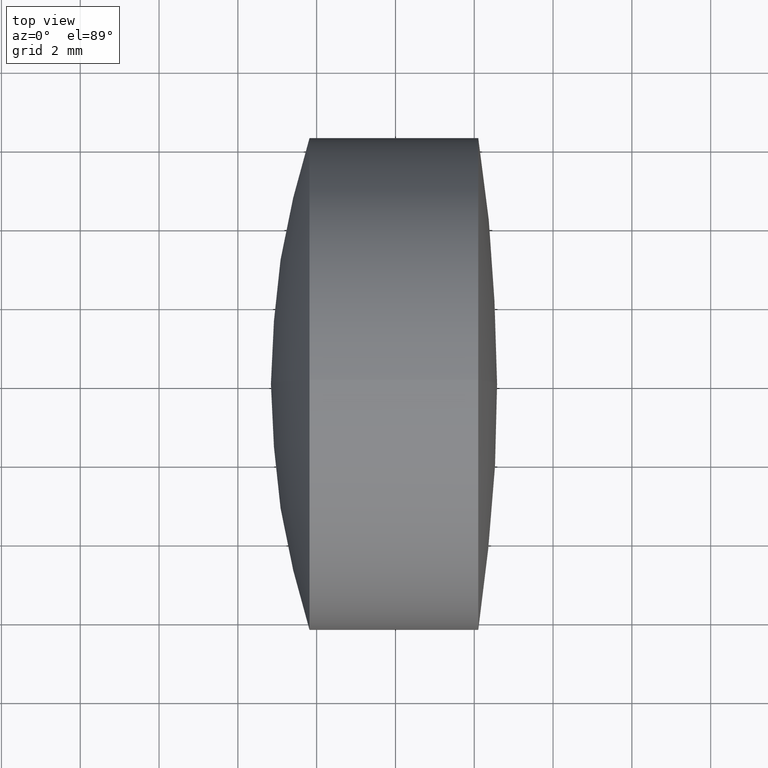
[diagram: clean part render]
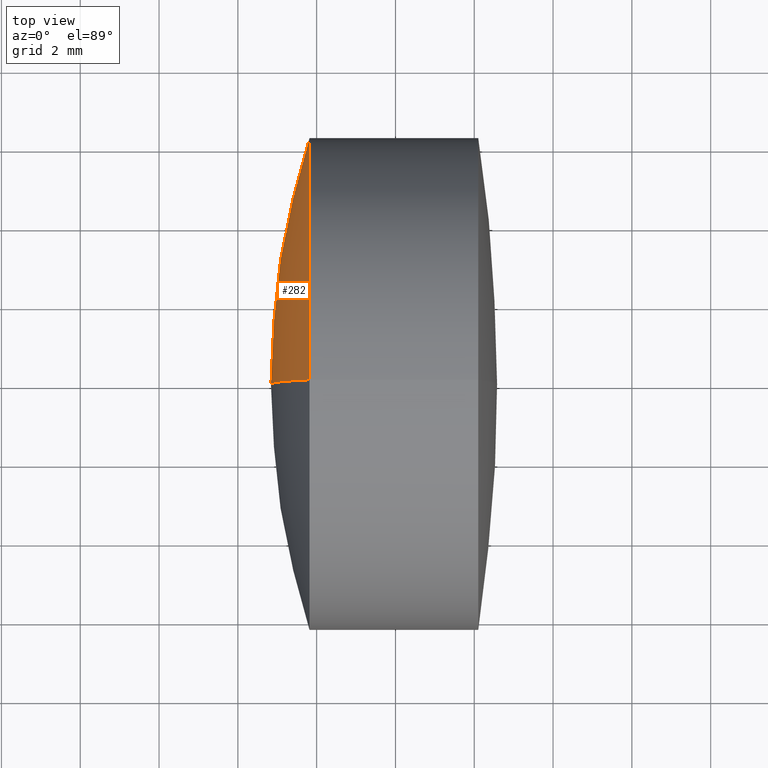
[diagram: same view with one face highlighted and labeled with its STEP entity id]
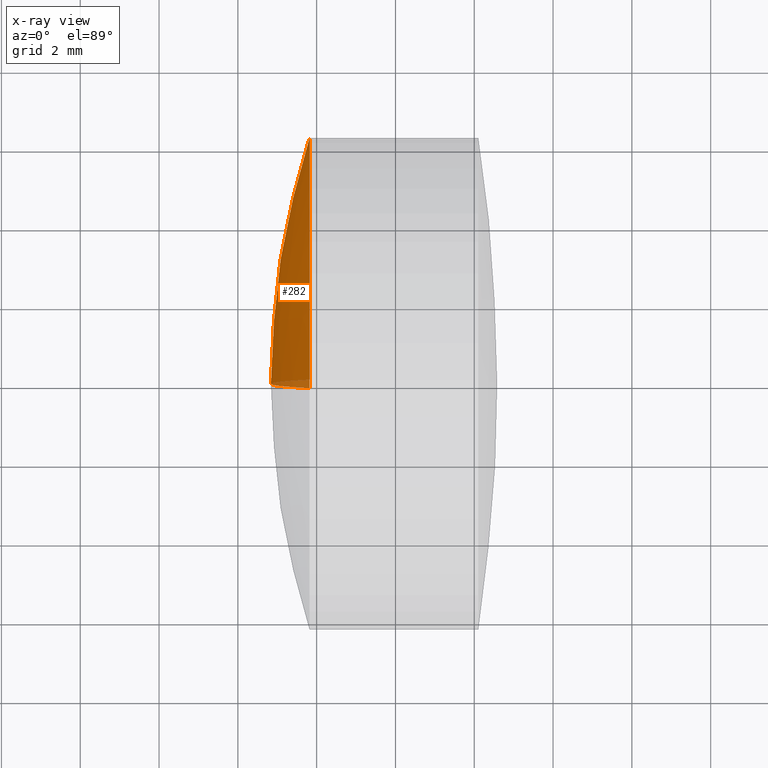
[diagram: x-ray of the same camera — body ghosted, the highlighted face saturated]
A machine part, top view. The second image highlights one B-rep face of the part: STEP entity #282.
The next image is the same camera in x-ray: the body ghosted, the highlighted face saturated — about 3% of this face is hidden behind the body in this view.
In plain terms, the highlighted spherical surface has radius 20.44 mm.
Its self-contained STEP definition (entity closure, byte-faithful):
#1 = CARTESIAN_POINT ( 'NONE',  ( -1.161079219261292000, 0.0000000000000000000, 4.320415974280943700E-016 ) ) ;
#5 = CARTESIAN_POINT ( 'NONE',  ( 19.27892078073870900, 0.0000000000000000000, -8.195474313005006500E-016 ) ) ;
#26 = CARTESIAN_POINT ( 'NONE',  ( -0.1820940951612623800, 0.0000000000000000000, 6.250000000000002700 ) ) ;
#27 = CARTESIAN_POINT ( 'NONE',  ( 19.27892078073870900, 0.0000000000000000000, -8.195474313005006500E-016 ) ) ;
#32 = CARTESIAN_POINT ( 'NONE',  ( -0.1820940951612623800, 7.654042494670960600E-016, -6.250000000000003600 ) ) ;
#44 = EDGE_CURVE ( 'NONE', #227, #338, #199, .T. ) ;
#45 = EDGE_CURVE ( 'NONE', #338, #248, #55, .T. ) ;
#46 = DIRECTION ( 'NONE',  ( -1.000000000000000000, -0.0000000000000000000, -0.0000000000000000000 ) ) ;
#47 = DIRECTION ( 'NONE',  ( 0.0000000000000000000, 0.0000000000000000000, -1.000000000000000000 ) ) ;
#55 = CIRCLE ( 'NONE', #254, 20.44000000000000100 ) ;
#72 = CARTESIAN_POINT ( 'NONE',  ( 19.27892078073870900, 0.0000000000000000000, -8.195474313005006500E-016 ) ) ;
#84 = DIRECTION ( 'NONE',  ( 0.0000000000000000000, -1.000000000000000000, 0.0000000000000000000 ) ) ;
#85 = AXIS2_PLACEMENT_3D ( 'NONE', #5, #291, #98 ) ;
#89 = ORIENTED_EDGE ( 'NONE', *, *, #44, .T. ) ;
#98 = DIRECTION ( 'NONE',  ( 0.0000000000000000000, 0.0000000000000000000, 1.000000000000000000 ) ) ;
#104 = DIRECTION ( 'NONE',  ( 0.0000000000000000000, 0.0000000000000000000, 1.000000000000000000 ) ) ;
#122 = DIRECTION ( 'NONE',  ( 0.0000000000000000000, -1.224646799147353000E-016, 1.000000000000000000 ) ) ;
#148 = ORIENTED_EDGE ( 'NONE', *, *, #45, .T. ) ;
#167 = SPHERICAL_SURFACE ( 'NONE', #85, 20.44000000000000100 ) ;
#199 = CIRCLE ( 'NONE', #239, 6.249999999999999100 ) ;
#203 = EDGE_CURVE ( 'NONE', #227, #248, #217, .T. ) ;
#208 = DIRECTION ( 'NONE',  ( -0.0000000000000000000, 1.000000000000000000, 1.224646799147353200E-016 ) ) ;
#212 = CARTESIAN_POINT ( 'NONE',  ( -0.1820940951612632400, 0.0000000000000000000, 0.0000000000000000000 ) ) ;
#217 = CIRCLE ( 'NONE', #221, 20.44000000000000100 ) ;
#221 = AXIS2_PLACEMENT_3D ( 'NONE', #72, #84, #47 ) ;
#227 = VERTEX_POINT ( 'NONE', #26 ) ;
#234 = EDGE_LOOP ( 'NONE', ( #89, #148, #265 ) ) ;
#239 = AXIS2_PLACEMENT_3D ( 'NONE', #212, #46, #104 ) ;
#248 = VERTEX_POINT ( 'NONE', #1 ) ;
#254 = AXIS2_PLACEMENT_3D ( 'NONE', #27, #208, #122 ) ;
#265 = ORIENTED_EDGE ( 'NONE', *, *, #203, .F. ) ;
#282 = ADVANCED_FACE ( 'NONE', ( #327 ), #167, .T. ) ;
#291 = DIRECTION ( 'NONE',  ( 0.0000000000000000000, 1.000000000000000000, 0.0000000000000000000 ) ) ;
#327 = FACE_OUTER_BOUND ( 'NONE', #234, .T. ) ;
#338 = VERTEX_POINT ( 'NONE', #32 ) ;